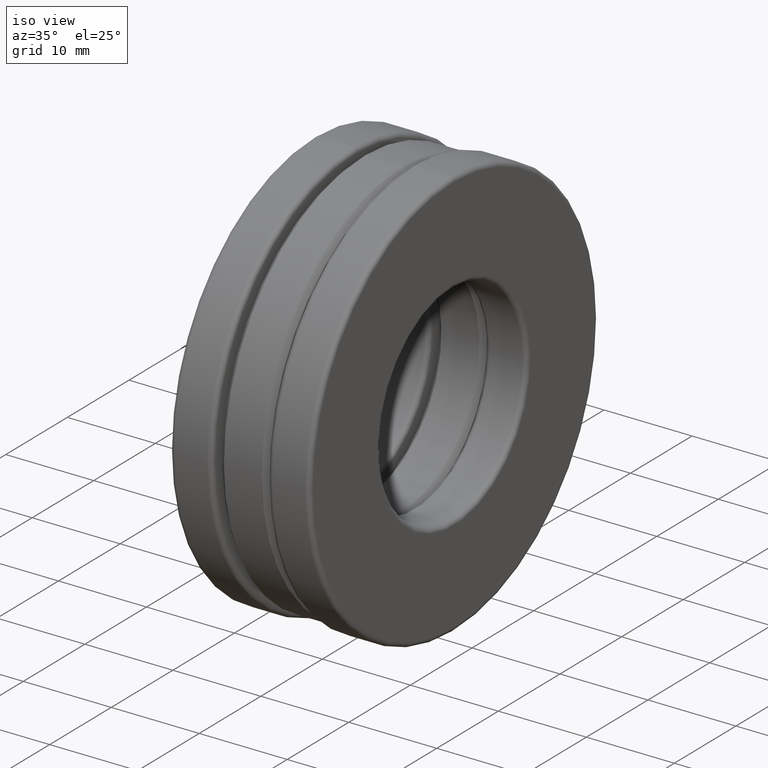
[diagram: clean part render]
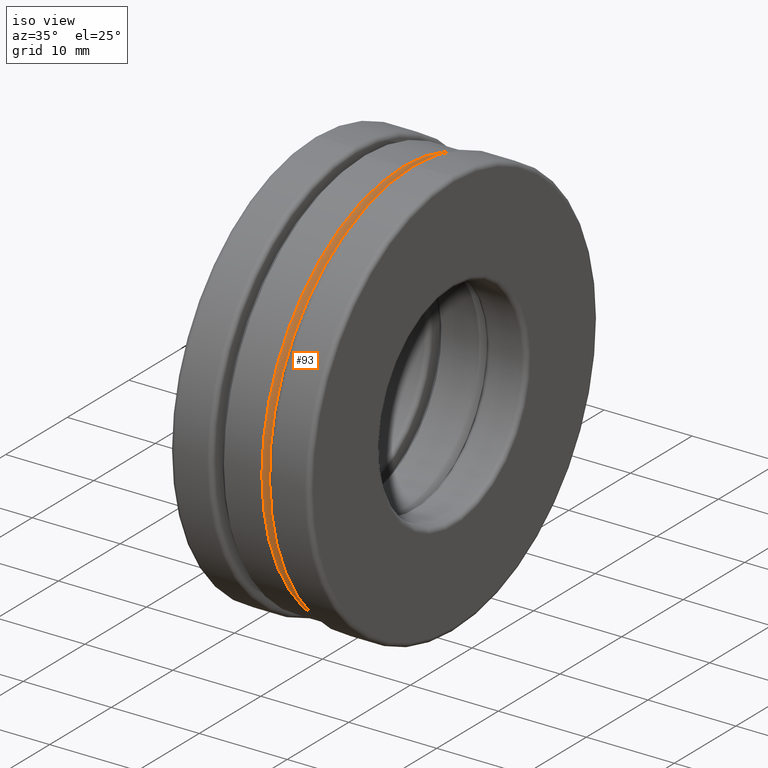
[diagram: same view with one face highlighted and labeled with its STEP entity id]
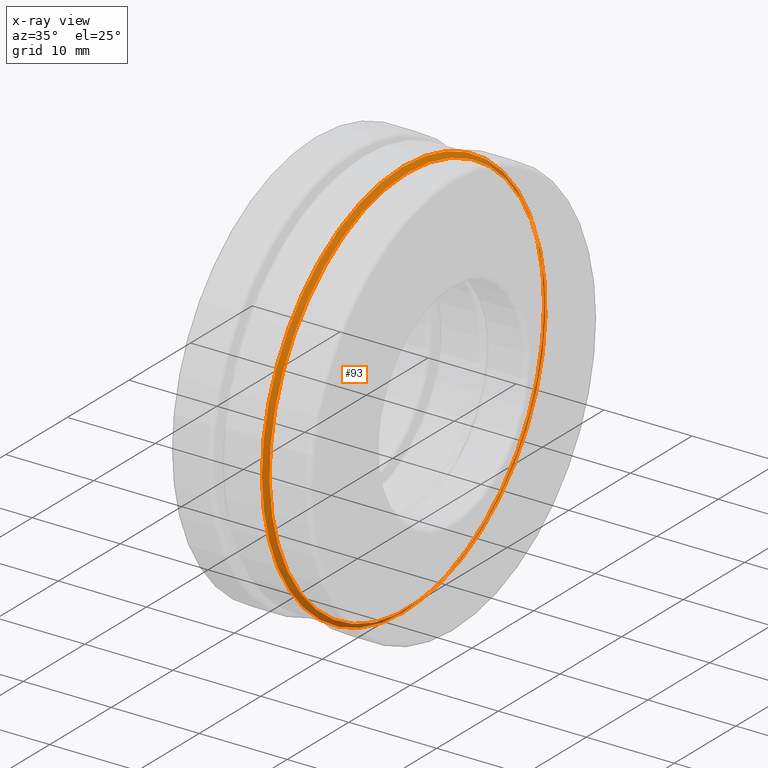
[diagram: x-ray of the same camera — body ghosted, the highlighted face saturated]
A machine part, iso view. The second image highlights one B-rep face of the part: STEP entity #93.
The next image is the same camera in x-ray: the body ghosted, the highlighted face saturated — about 18% of this face is hidden behind the body in this view.
In plain terms, the highlighted conical surface has half-angle 45 deg.
Its self-contained STEP definition (entity closure, byte-faithful):
#26 = VERTEX_POINT ( 'NONE', #713 ) ;
#64 = AXIS2_PLACEMENT_3D ( 'NONE', #969, #281, #522 ) ;
#93 = ADVANCED_FACE ( 'NONE', ( #276, #241 ), #1261, .T. ) ;
#134 = EDGE_LOOP ( 'NONE', ( #150 ) ) ;
#150 = ORIENTED_EDGE ( 'NONE', *, *, #171, .T. ) ;
#171 = EDGE_CURVE ( 'NONE', #26, #26, #757, .T. ) ;
#241 = FACE_OUTER_BOUND ( 'NONE', #776, .T. ) ;
#272 = VERTEX_POINT ( 'NONE', #1067 ) ;
#276 = FACE_BOUND ( 'NONE', #134, .T. ) ;
#281 = DIRECTION ( 'NONE',  ( -1.000000000000000000, -0.0000000000000000000, -0.0000000000000000000 ) ) ;
#351 = CIRCLE ( 'NONE', #64, 0.9018749999999995400 ) ;
#522 = DIRECTION ( 'NONE',  ( 0.0000000000000000000, 0.0000000000000000000, 1.000000000000000000 ) ) ;
#713 = CARTESIAN_POINT ( 'NONE',  ( 0.1050000000000000200, 0.0000000000000000000, 0.8818749999999997400 ) ) ;
#757 = CIRCLE ( 'NONE', #1255, 0.8818749999999997400 ) ;
#776 = EDGE_LOOP ( 'NONE', ( #1349 ) ) ;
#929 = EDGE_CURVE ( 'NONE', #272, #272, #351, .T. ) ;
#969 = CARTESIAN_POINT ( 'NONE',  ( 0.08500000000000002000, 0.0000000000000000000, 0.0000000000000000000 ) ) ;
#1067 = CARTESIAN_POINT ( 'NONE',  ( 0.08500000000000002000, 0.0000000000000000000, 0.9018749999999995400 ) ) ;
#1091 = CARTESIAN_POINT ( 'NONE',  ( 0.08500000000000002000, 0.0000000000000000000, 0.0000000000000000000 ) ) ;
#1255 = AXIS2_PLACEMENT_3D ( 'NONE', #1347, #1460, #1457 ) ;
#1261 = CONICAL_SURFACE ( 'NONE', #1299, 0.9018749999999995400, 0.7853981633974427300 ) ;
#1299 = AXIS2_PLACEMENT_3D ( 'NONE', #1091, #1310, #1302 ) ;
#1302 = DIRECTION ( 'NONE',  ( 0.0000000000000000000, 0.0000000000000000000, 1.000000000000000000 ) ) ;
#1310 = DIRECTION ( 'NONE',  ( -1.000000000000000000, -0.0000000000000000000, -0.0000000000000000000 ) ) ;
#1347 = CARTESIAN_POINT ( 'NONE',  ( 0.1050000000000000200, 0.0000000000000000000, 0.0000000000000000000 ) ) ;
#1349 = ORIENTED_EDGE ( 'NONE', *, *, #929, .F. ) ;
#1457 = DIRECTION ( 'NONE',  ( 0.0000000000000000000, 0.0000000000000000000, 1.000000000000000000 ) ) ;
#1460 = DIRECTION ( 'NONE',  ( -1.000000000000000000, -0.0000000000000000000, -0.0000000000000000000 ) ) ;